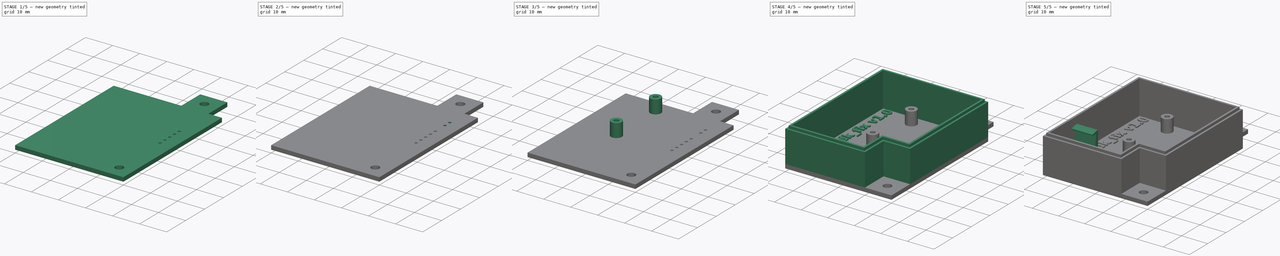
[diagram: build sequence overview — one tinted view per stage of 5, left to right]
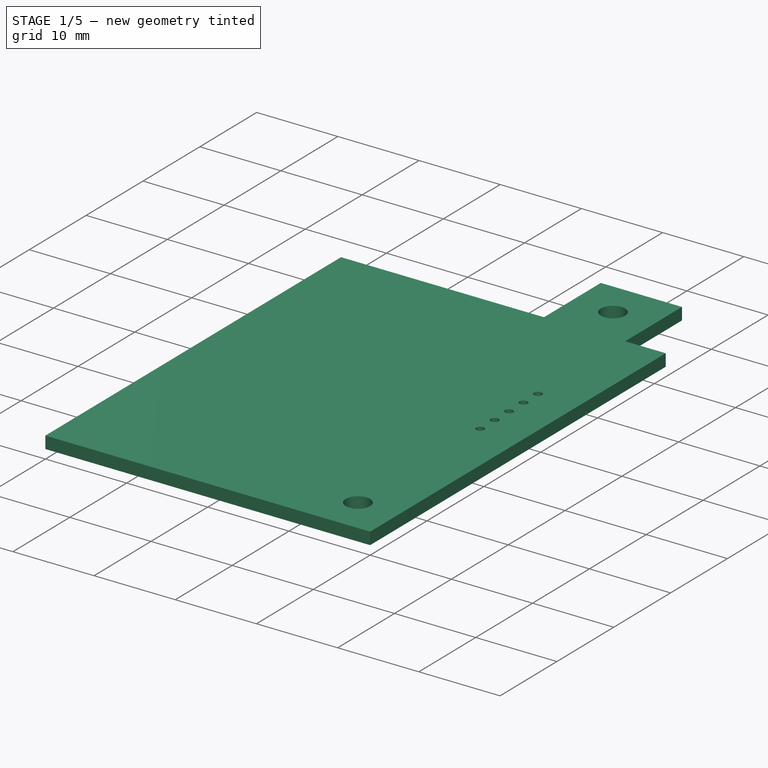
[diagram: stage 1 of 5 — iso view after this stage's code; geometry added in this stage tinted green]
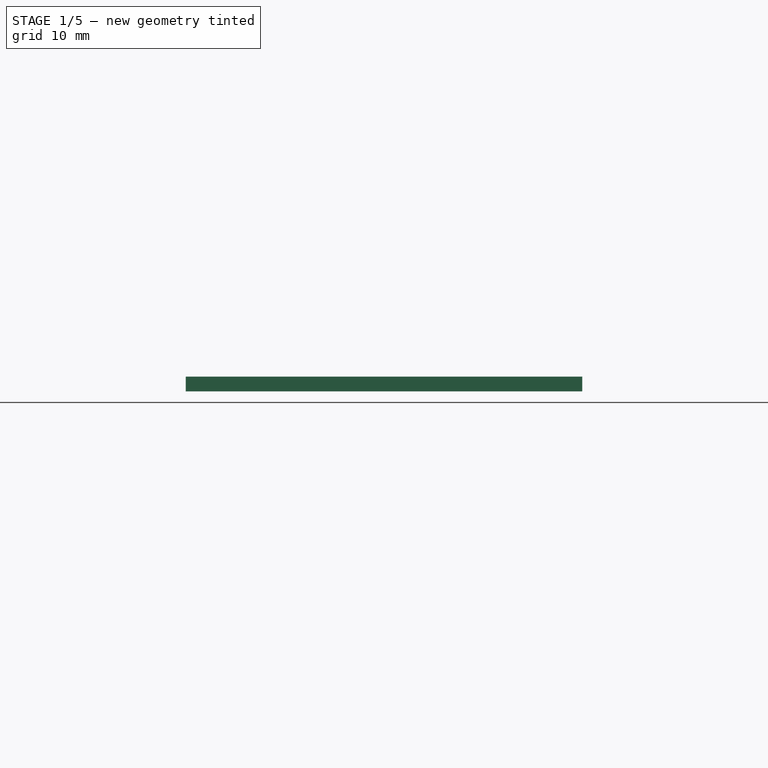
[diagram: stage 1 of 5 — front view after this stage's code; geometry added in this stage tinted green]
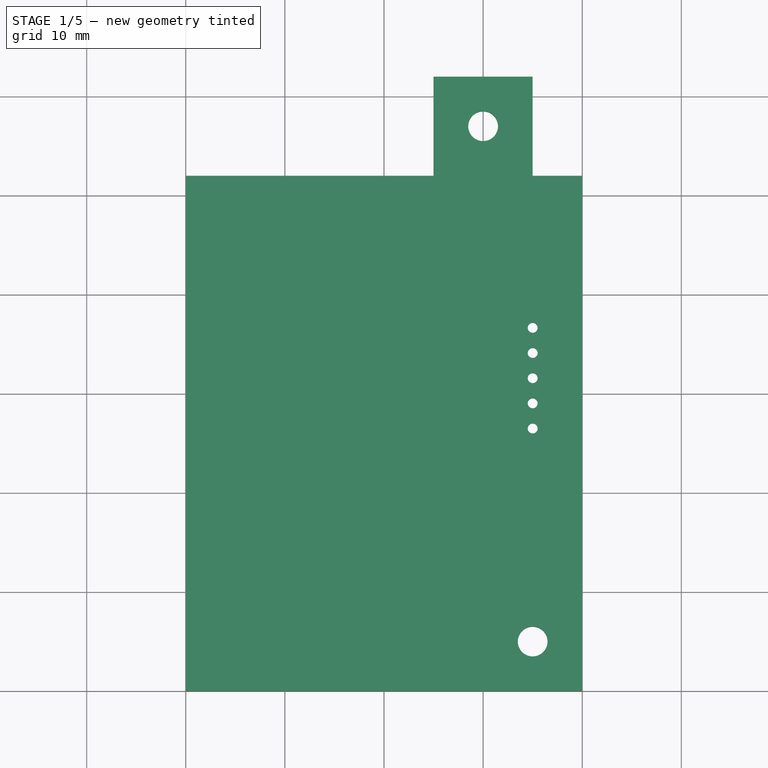
[diagram: stage 1 of 5 — top view after this stage's code; geometry added in this stage tinted green]
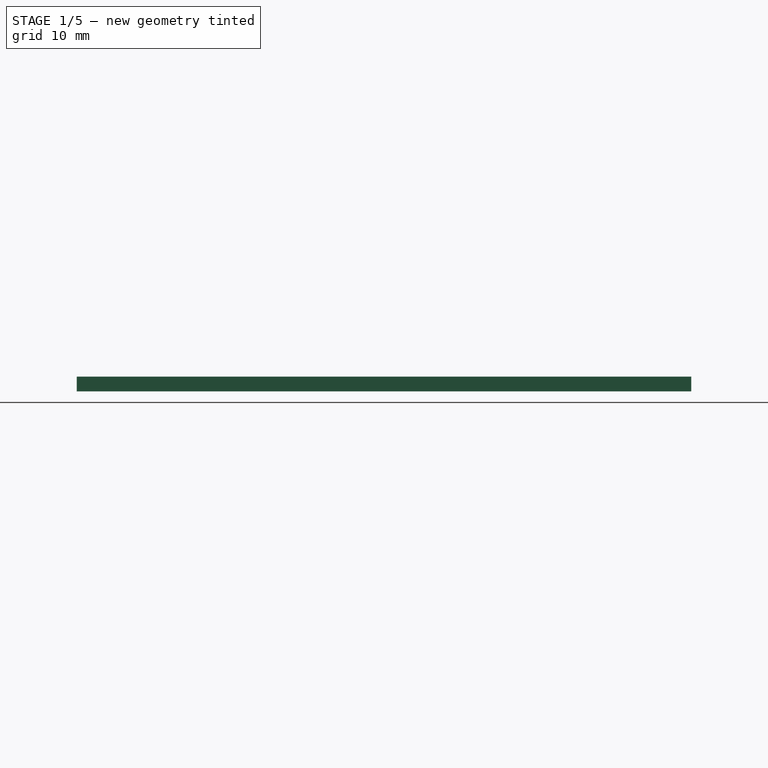
[diagram: stage 1 of 5 — right view after this stage's code; geometry added in this stage tinted green]
FCSTD DOCUMENT  (FreeCAD 0.19R24366 (Git))
Label: rad_dk_fixture
License: All rights reserved
LicenseURL: http://en.wikipedia.org/wiki/All_rights_reserved
objects: Sketcher::SketchObject×12, PartDesign::Pad×9, PartDesign::Body×5, PartDesign::Pocket×4, PartDesign::LinearPattern×2, PartDesign::Hole×2, PartDesign::FeatureBase×1, Part::Part2DObjectPython×1, App::Part×1
note: 51 computed .brp shape members not serialized (recipe doc carries the construction recipe); baked Part::Feature solids carry a one-line shape summary decoded from their .brp

FEATURE [PartDesign::Body] Body004
  BaseFeature = -> Body003
  Group = -> [Clone]
  Origin = -> Origin005
  Placement = pos=(30,52,0) rot=(0,0,1;3.14159rad)
  Tip = -> Clone
FEATURE [Sketcher::SketchObject] Sketch
  FullyConstrained = true
  MapMode = 5
  Support = -> [XY_Plane001]
  sketch-geometry (11):
    g0: Circle CenterX=30 CenterY=57 CenterZ=0 NormalX=0 NormalY=0 NormalZ=1 AngleXU=0 Radius=1.5
    g1: Circle CenterX=35 CenterY=5 CenterZ=0 NormalX=0 NormalY=0 NormalZ=1 AngleXU=0 Radius=1.5
    g2: LineSegment StartX=40 StartY=52 StartZ=0 EndX=40 EndY=0 EndZ=0
    g3: LineSegment StartX=40 StartY=0 StartZ=0 EndX=0 EndY=0 EndZ=0
    g4: LineSegment StartX=35 StartY=62 StartZ=0 EndX=35 EndY=52 EndZ=0
    g5: LineSegment StartX=35 StartY=52 StartZ=0 EndX=40 EndY=52 EndZ=0
    g6: LineSegment StartX=0 StartY=52 StartZ=0 EndX=0 EndY=0 EndZ=0
    g7: LineSegment StartX=35 StartY=62 StartZ=0 EndX=25 EndY=62 EndZ=0
    g8: LineSegment StartX=25 StartY=62 StartZ=0 EndX=25 EndY=52 EndZ=0
    g9: LineSegment StartX=25 StartY=52 StartZ=0 EndX=0 EndY=52 EndZ=0
    g10: LineSegment StartX=25 StartY=52 StartZ=0 EndX=35 EndY=52 EndZ=0
  constraints (32):
    c: Diameter(g0) = 3
    c: Diameter(g1) = 3
    c: DistanceX(g0,g1) = 5
    c: DistanceY(g1,g0) = 52
    c: Coincident(g2,g3)
    c: Horizontal(g3)
    c: Vertical(g2)
    c: Distance(g1,g3) = 5
    c: Distance(g1,g2) = 5
    c: Vertical(g4)
    c: Coincident(g5,g4)
    c: Coincident(g5,g2)
    c: Horizontal(g5)
    c: DistanceY(g4,g4) = 10
    c: Distance(g0,g4) = 5
    c: PointOnObject(g3,g-1)
    c: Vertical(g6)
    c: Coincident(g6,g3)
    c: DistanceX(g3,g3) = 40
    c: PointOnObject(g6,g-2)
    c: Coincident(g7,g4)
    c: Horizontal(g7)
    c: Coincident(g8,g7)
    c: Vertical(g8)
    c: Coincident(g9,g8)
    c: Coincident(g9,g6)
    c: Horizontal(g9)
    c: Distance(g0,g8) = 5
    c: Coincident(g10,g8)
    c: Coincident(g10,g4)
    c: Horizontal(g10)
    c: Distance(g0,g10) = 5
FEATURE [PartDesign::Pad] Pad
  Direction = (1,1,1)
  Length = 1.5
  Length2 = 100
  Profile = -> Sketch
  Type = 0
FEATURE [Sketcher::SketchObject] Sketch001
  ExternalGeometry = -> [Pad]
  FullyConstrained = true
  MapMode = 5
  Support = -> [XY_Plane001]
  sketch-geometry (2):
    g0: Circle CenterX=35 CenterY=26.5 CenterZ=0 NormalX=0 NormalY=0 NormalZ=1 AngleXU=0 Radius=0.5
    g1: LineSegment StartX=35 StartY=5 StartZ=0 EndX=35 EndY=26.5 EndZ=0
  constraints (5):
    c: Diameter(g0) = 1
    c: Coincident(g1,g-5)
    c: Coincident(g1,g0)
    c: Vertical(g1)
    c: DistanceY(g1,g0) = 21.5
FEATURE [PartDesign::Pocket] Pocket
  BaseFeature = -> Pad
  Length = 5
  Length2 = 100
  Profile = -> Sketch001
  Reversed = true
  Type = 1
FEATURE [PartDesign::LinearPattern] LinearPattern
  BaseFeature = -> Pocket
  Direction = -> Sketch001 [V_Axis]
  Length = 10.16
  Occurrences = 5
  Originals = -> [Pocket]
FEATURE [Sketcher::SketchObject] Sketch002
  ExternalGeometry = -> [LinearPattern]
  FullyConstrained = true
  MapMode = 5
  Support = -> [XY_Plane001]
  sketch-geometry (4):
    g0: LineSegment StartX=36.25 StartY=37.91 StartZ=0 EndX=33.75 EndY=37.91 EndZ=0
    g1: LineSegment StartX=33.75 StartY=37.91 StartZ=0 EndX=33.75 EndY=25.25 EndZ=0
    g2: LineSegment StartX=33.75 StartY=25.25 StartZ=0 EndX=36.25 EndY=25.25 EndZ=0
    g3: LineSegment StartX=36.25 StartY=25.25 StartZ=0 EndX=36.25 EndY=37.91 EndZ=0
  constraints (12):
    c: Horizontal(g0)
    c: Horizontal(g2)
    c: Vertical(g1)
    c: Vertical(g3)
    c: Coincident(g0,g3)
    c: Coincident(g0,g1)
    c: Coincident(g2,g1)
    c: Coincident(g2,g3)
    c: Distance(g-7,g2) = 1.25
    c: Distance(g-7,g1) = 1.25
    c: Distance(g-7,g3) = 1.25
    c: Distance(g-5,g0) = 1.25
FEATURE [PartDesign::Pocket] Pocket001
  BaseFeature = -> LinearPattern
  Length = 0.5
  Length2 = 100
  Profile = -> Sketch002
  Reversed = true
  Type = 0
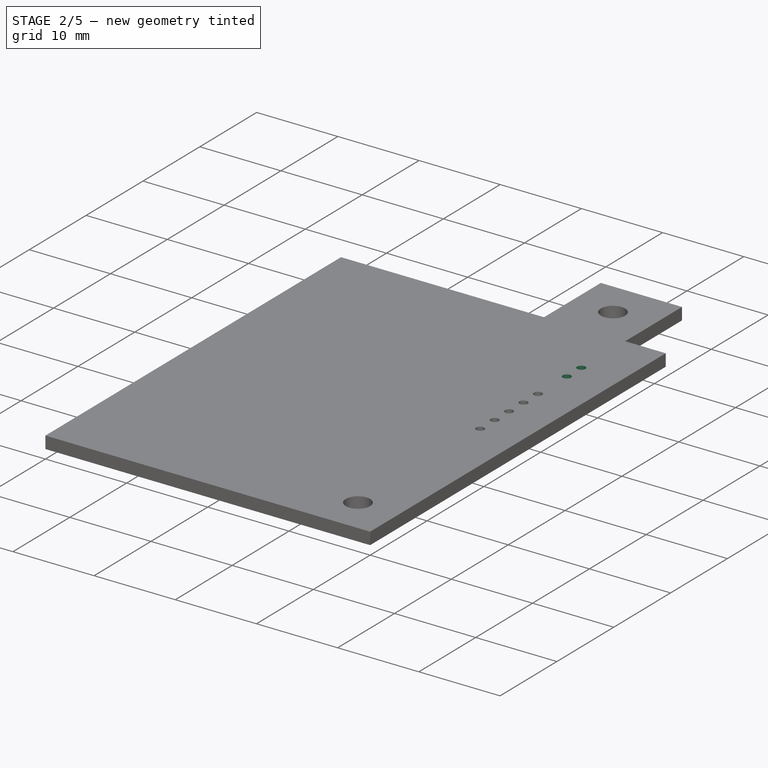
[diagram: stage 2 of 5 — iso view after this stage's code; geometry added in this stage tinted green]
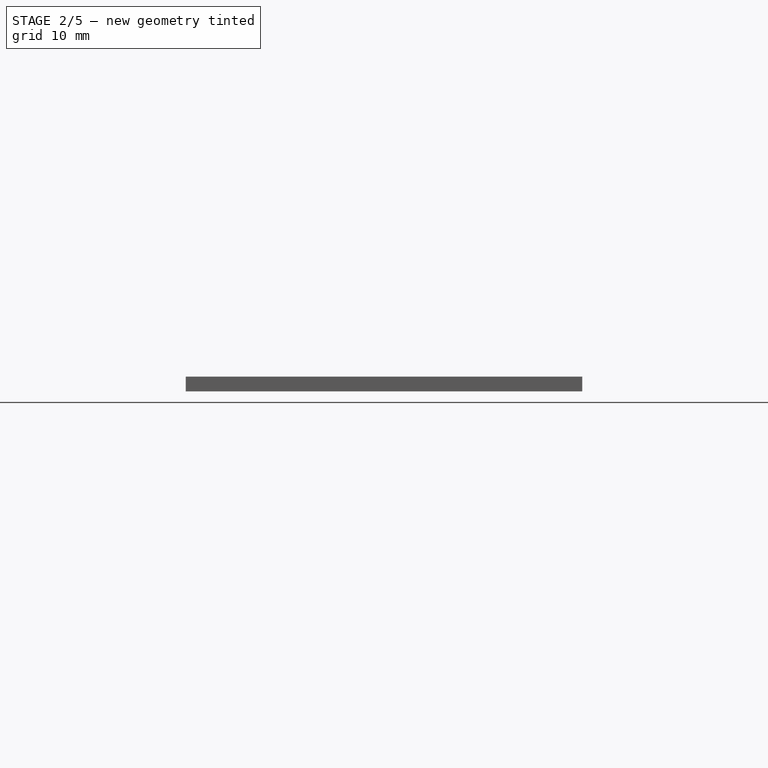
[diagram: stage 2 of 5 — front view after this stage's code; geometry added in this stage tinted green]
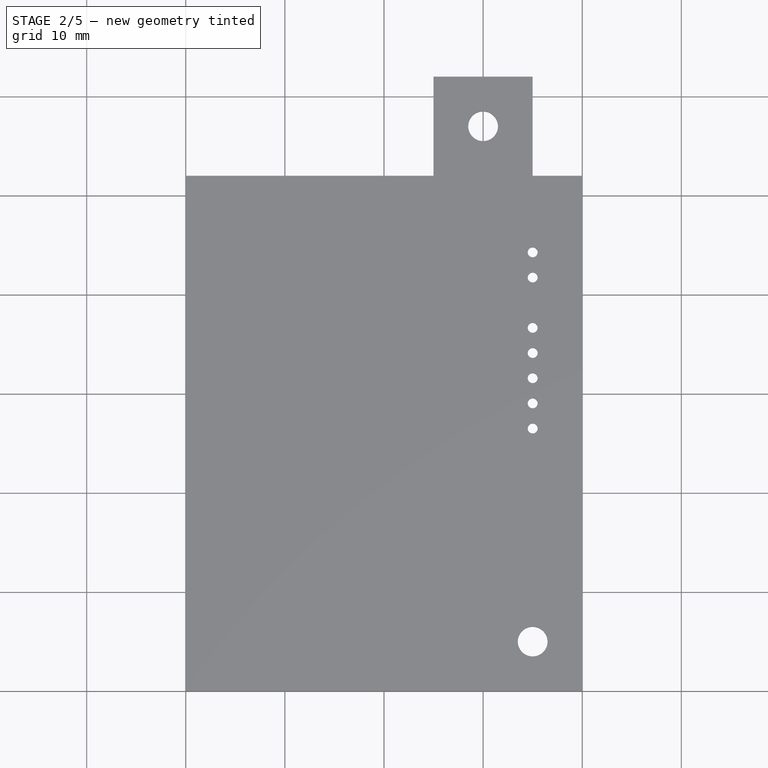
[diagram: stage 2 of 5 — top view after this stage's code; geometry added in this stage tinted green]
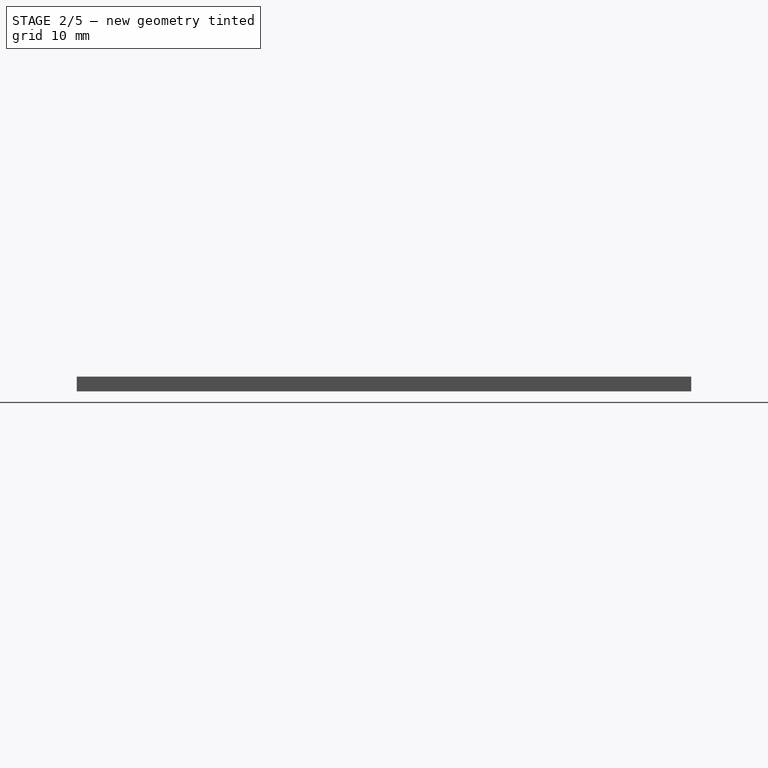
[diagram: stage 2 of 5 — right view after this stage's code; geometry added in this stage tinted green]
FEATURE [Sketcher::SketchObject] Sketch003
  ExternalGeometry = -> [Pocket001]
  FullyConstrained = true
  MapMode = 5
  Placement = pos=(0,0,1.5) rot=(0,0,1;0rad)
  Support = -> [Pocket001]
  sketch-geometry (2):
    g0: Circle CenterX=35 CenterY=41.74 CenterZ=0 NormalX=0 NormalY=0 NormalZ=1 AngleXU=0 Radius=0.5
    g1: LineSegment StartX=35 StartY=41.74 StartZ=0 EndX=35 EndY=26.5 EndZ=0
  constraints (5):
    c: Diameter(g0) = 1
    c: Coincident(g1,g0)
    c: Coincident(g1,g-4)
    c: Vertical(g1)
    c: DistanceY(g1,g0) = 15.24
FEATURE [PartDesign::Pocket] Pocket002
  BaseFeature = -> Pocket001
  Length = 5
  Length2 = 100
  Profile = -> Sketch003
  Type = 1
FEATURE [PartDesign::LinearPattern] LinearPattern001
  BaseFeature = -> Pocket002
  Direction = -> Sketch003 [V_Axis]
  Length = 2.54
  Occurrences = 2
  Originals = -> [Pocket002]
FEATURE [Sketcher::SketchObject] Sketch004
  ExternalGeometry = -> [LinearPattern001]
  FullyConstrained = true
  MapMode = 5
  Placement = pos=(0,0,0) rot=(1,0,0;3.14159rad)
  Support = -> [LinearPattern001]
  sketch-geometry (4):
    g0: LineSegment StartX=33.75 StartY=-45.53 StartZ=0 EndX=36.25 EndY=-45.53 EndZ=0
    g1: LineSegment StartX=36.25 StartY=-45.53 StartZ=0 EndX=36.25 EndY=-40.49 EndZ=0
    g2: LineSegment StartX=36.25 StartY=-40.49 StartZ=0 EndX=33.75 EndY=-40.49 EndZ=0
    g3: LineSegment StartX=33.75 StartY=-40.49 StartZ=0 EndX=33.75 EndY=-45.53 EndZ=0
  constraints (12):
    c: Coincident(g1,g2)
    c: Coincident(g2,g3)
    c: Coincident(g3,g0)
    c: Horizontal(g0)
    c: Horizontal(g2)
    c: Vertical(g1)
    c: Vertical(g3)
    c: Coincident(g0,g1)
    c: Distance(g-7,g0) = 1.25
    c: Distance(g-7,g3) = 1.25
    c: Distance(g-7,g1) = 1.25
    c: Distance(g-8,g2) = 1.25
FEATURE [PartDesign::Pocket] Pocket003
  BaseFeature = -> LinearPattern001
  Length = 0.5
  Length2 = 100
  Profile = -> Sketch004
  Type = 0
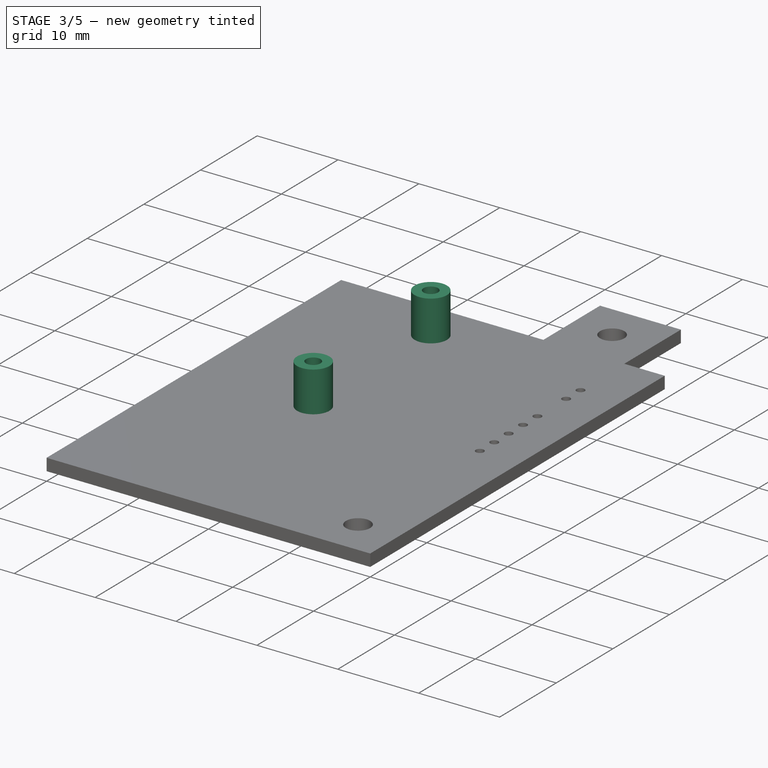
[diagram: stage 3 of 5 — iso view after this stage's code; geometry added in this stage tinted green]
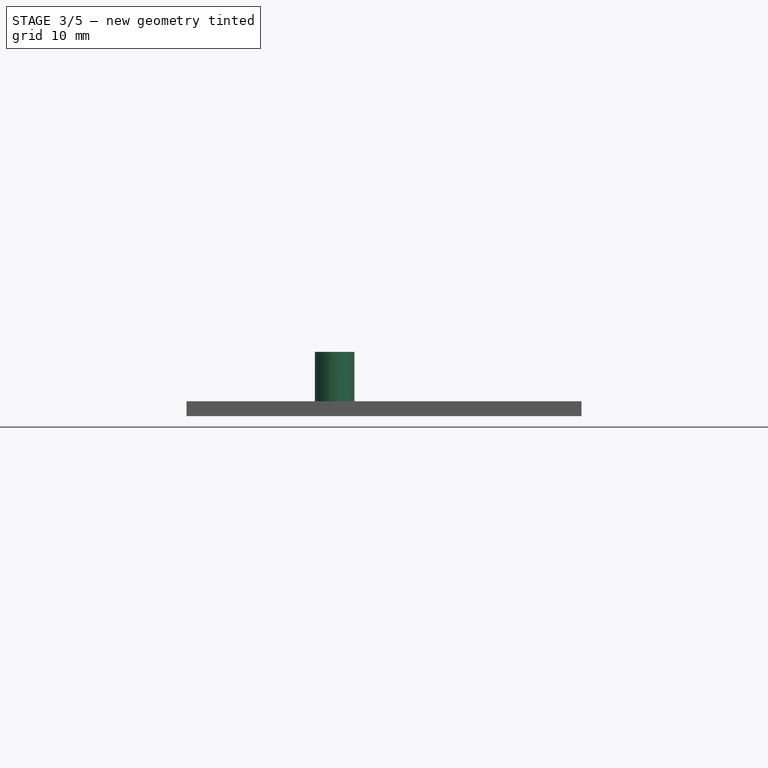
[diagram: stage 3 of 5 — front view after this stage's code; geometry added in this stage tinted green]
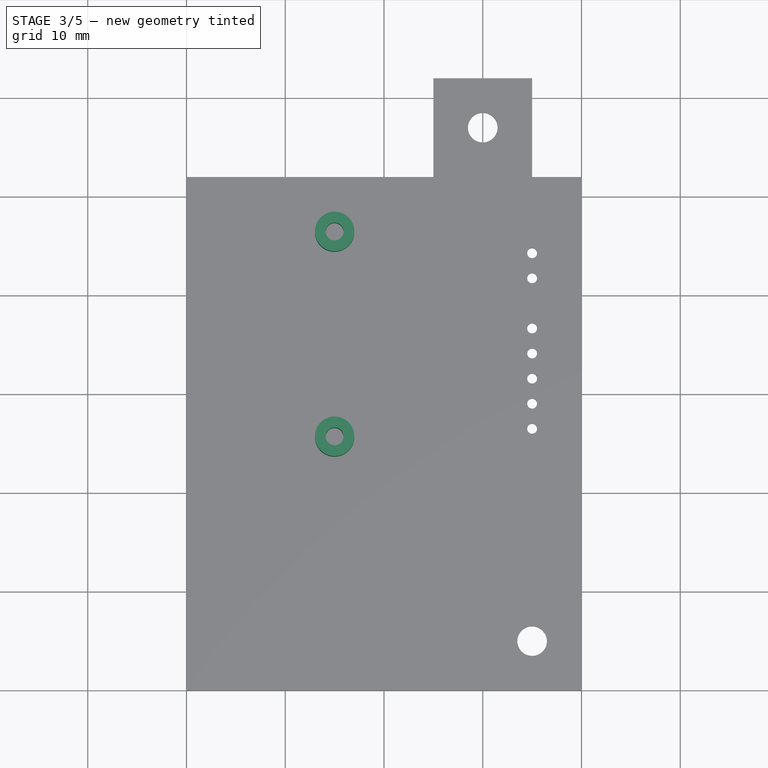
[diagram: stage 3 of 5 — top view after this stage's code; geometry added in this stage tinted green]
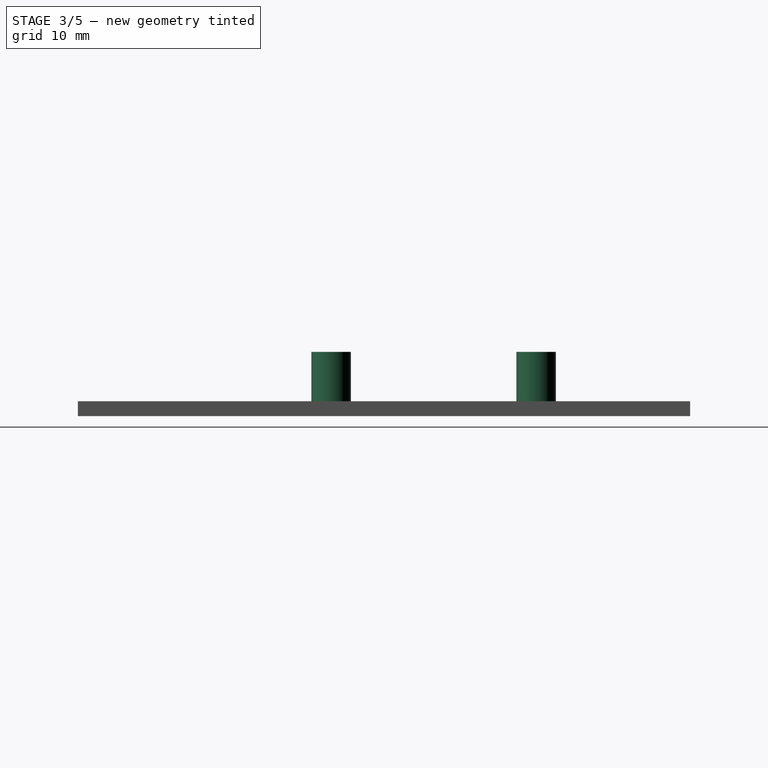
[diagram: stage 3 of 5 — right view after this stage's code; geometry added in this stage tinted green]
FEATURE [Sketcher::SketchObject] Sketch005
  ExternalGeometry = -> [Pocket003]
  FullyConstrained = true
  MapMode = 5
  Placement = pos=(0,0,1.5) rot=(0,0,1;0rad)
  Support = -> [Pocket003]
  sketch-geometry (4):
    g0: Circle CenterX=15 CenterY=46.4 CenterZ=0 NormalX=0 NormalY=0 NormalZ=1 AngleXU=0 Radius=2
    g1: Circle CenterX=15 CenterY=37 CenterZ=0 NormalX=0 NormalY=0 NormalZ=1 AngleXU=0 Radius=12.5
    g2: LineSegment StartX=15 StartY=46.4 StartZ=0 EndX=15 EndY=49.5 EndZ=0
    g3: LineSegment StartX=15 StartY=37 StartZ=0 EndX=2.5 EndY=37 EndZ=0
  constraints (12):
    c: Diameter(g0) = 4
    c: Diameter(g1) = 25
    c: DistanceX(g1,g0) = 0
    c: Coincident(g2,g0)
    c: PointOnObject(g2,g1)
    c: Vertical(g2)
    c: DistanceY(g2,g2) = 3.1
    c: Distance(g2,g-8) = 2.5
    c: Coincident(g3,g1)
    c: PointOnObject(g3,g1)
    c: Horizontal(g3)
    c: Distance(g3,g-9) = 2.5
FEATURE [PartDesign::Pad] Pad008
  BaseFeature = -> Pocket003
  Direction = (1,1,1)
  Length = 5
  Length2 = 100
  Profile = -> Sketch005
  Type = 0
FEATURE [PartDesign::Hole] Hole
  BaseFeature = -> Pad008
  Depth = 5
  DepthType = 0
  Diameter = 1.8
  DrillForDepth = false
  DrillPoint = 0
  DrillPointAngle = 118
  HoleCutCountersinkAngle = 90
  HoleCutCustomValues = false
  HoleCutDepth = 0
  HoleCutDiameter = 6.1
  HoleCutType = 0
  ModelActualThread = false
  Profile = -> Pad008 [Face31]
  Tapered = false
  TaperedAngle = 90
  ThreadAngle = 0
  ThreadClass = 0
  ThreadCutOffInner = 0
  ThreadCutOffOuter = 0
  ThreadDirection = 0
  ThreadFit = 0
  ThreadPitch = 0
  ThreadSize = 0
  ThreadType = 0
  Threaded = false
FEATURE [Sketcher::SketchObject] Sketch012
  ExternalGeometry = -> [Hole]
  FullyConstrained = true
  MapMode = 5
  Placement = pos=(0,0,1.5) rot=(0,0,1;0rad)
  Support = -> [Hole]
  sketch-geometry (2):
    g0: Circle CenterX=15 CenterY=25.65 CenterZ=0 NormalX=0 NormalY=0 NormalZ=1 AngleXU=0 Radius=2
    g1: LineSegment StartX=15 StartY=46.4 StartZ=0 EndX=15 EndY=25.65 EndZ=0
  constraints (5):
    c: Diameter(g0) = 4
    c: Coincident(g1,g-3)
    c: Coincident(g1,g0)
    c: Vertical(g1)
    c: DistanceY(g1,g1) = 20.75
FEATURE [PartDesign::Pad] Pad009
  BaseFeature = -> Hole
  Direction = (1,1,1)
  Length = 5
  Length2 = 100
  Profile = -> Sketch012
  Type = 0
FEATURE [PartDesign::Hole] Hole001
  BaseFeature = -> Pad009
  Depth = 5
  DepthType = 0
  Diameter = 1.8
  DrillForDepth = false
  DrillPoint = 0
  DrillPointAngle = 118
  HoleCutCountersinkAngle = 90
  HoleCutCustomValues = false
  HoleCutDepth = 0
  HoleCutDiameter = 6.1
  HoleCutType = 0
  ModelActualThread = false
  Profile = -> Pad009 [Face32]
  Tapered = false
  TaperedAngle = 90
  ThreadAngle = 0
  ThreadClass = 0
  ThreadCutOffInner = 0
  ThreadCutOffOuter = 0
  ThreadDirection = 0
  ThreadFit = 0
  ThreadPitch = 0
  ThreadSize = 0
  ThreadType = 0
  Threaded = false
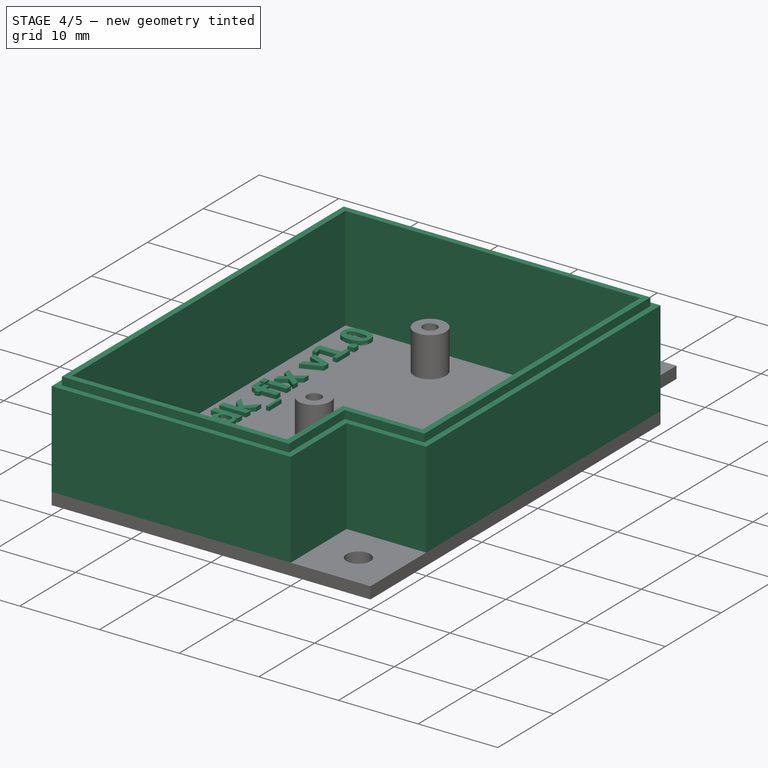
[diagram: stage 4 of 5 — iso view after this stage's code; geometry added in this stage tinted green]
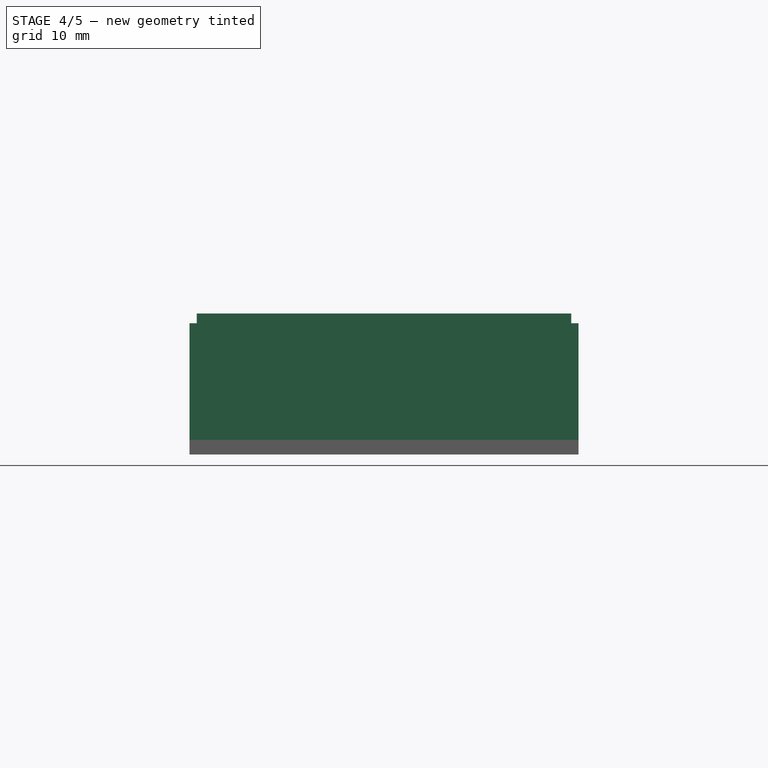
[diagram: stage 4 of 5 — front view after this stage's code; geometry added in this stage tinted green]
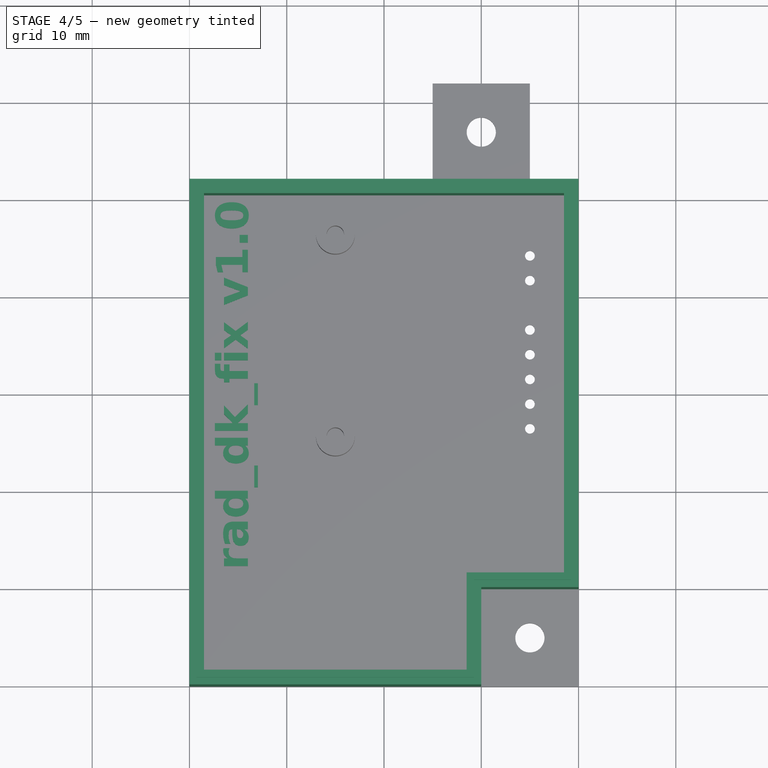
[diagram: stage 4 of 5 — top view after this stage's code; geometry added in this stage tinted green]
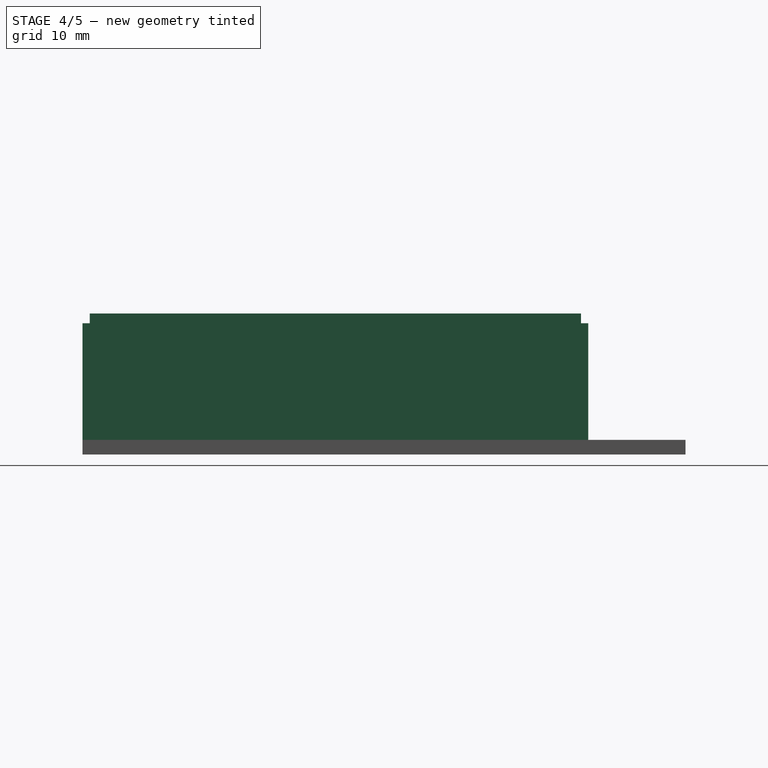
[diagram: stage 4 of 5 — right view after this stage's code; geometry added in this stage tinted green]
FEATURE [Sketcher::SketchObject] Sketch013
  ExternalGeometry = -> [Hole001]
  FullyConstrained = true
  MapMode = 5
  Placement = pos=(0,0,1.5) rot=(0,0,1;0rad)
  Support = -> [Hole001]
  sketch-geometry (12):
    g0: LineSegment StartX=0 StartY=52 StartZ=0 EndX=40 EndY=52 EndZ=0
    g1: LineSegment StartX=40 StartY=52 StartZ=0 EndX=40 EndY=10 EndZ=0
    g2: LineSegment StartX=40 StartY=10 StartZ=0 EndX=30 EndY=10 EndZ=0
    g3: LineSegment StartX=30 StartY=10 StartZ=0 EndX=30 EndY=0 EndZ=0
    g4: LineSegment StartX=30 StartY=0 StartZ=0 EndX=0 EndY=0 EndZ=0
    g5: LineSegment StartX=0 StartY=0 StartZ=0 EndX=0 EndY=52 EndZ=0
    g6: LineSegment StartX=1.5 StartY=50.5 StartZ=0 EndX=38.5 EndY=50.5 EndZ=0
    g7: LineSegment StartX=38.5 StartY=50.5 StartZ=0 EndX=38.5 EndY=11.5 EndZ=0
    g8: LineSegment StartX=38.5 StartY=11.5 StartZ=0 EndX=28.5 EndY=11.5 EndZ=0
    g9: LineSegment StartX=28.5 StartY=11.5 StartZ=0 EndX=28.5 EndY=1.5 EndZ=0
    g10: LineSegment StartX=28.5 StartY=1.5 StartZ=0 EndX=1.5 EndY=1.5 EndZ=0
    g11: LineSegment StartX=1.5 StartY=1.5 StartZ=0 EndX=1.5 EndY=50.5 EndZ=0
  constraints (33):
    c: Coincident(g1,g0)
    c: Vertical(g1)
    c: Coincident(g2,g1)
    c: Horizontal(g2)
    c: Coincident(g3,g2)
    c: Vertical(g3)
    c: Coincident(g4,g3)
    c: Horizontal(g4)
    c: Coincident(g5,g4)
    c: Coincident(g5,g0)
    c: Horizontal(g6)
    c: Coincident(g7,g6)
    c: Vertical(g7)
    c: Coincident(g8,g7)
    c: Horizontal(g8)
    c: Coincident(g9,g8)
    c: Vertical(g9)
    c: Coincident(g10,g9)
    c: Horizontal(g10)
    c: Coincident(g11,g10)
    c: Coincident(g11,g6)
    c: Vertical(g11)
    c: Distance(g6,g0) = 1.5
    c: Distance(g6,g5) = 1.5
    c: Distance(g6,g1) = 1.5
    c: Distance(g7,g2) = 1.5
    c: Distance(g8,g3) = 1.5
    c: Distance(g9,g4) = 1.5
    c: Coincident(g0,g-4)
    c: Coincident(g0,g-6)
    c: Coincident(g4,g-1)
    c: DistanceX(g2,g2) = 10
    c: DistanceY(g3,g3) = 10
FEATURE [PartDesign::Pad] Pad010
  BaseFeature = -> Hole001
  Direction = (1,1,1)
  Length = 12
  Length2 = 100
  Profile = -> Sketch013
  Type = 0
FEATURE [Sketcher::SketchObject] Sketch014
  ExternalGeometry = -> [Pad010]
  FullyConstrained = true
  MapMode = 5
  Placement = pos=(0,0,13.5) rot=(0,0,1;0rad)
  Support = -> [Pad010]
  sketch-geometry (12):
    g0: LineSegment StartX=0.75 StartY=51.25 StartZ=0 EndX=39.25 EndY=51.25 EndZ=0
    g1: LineSegment StartX=39.25 StartY=51.25 StartZ=0 EndX=39.25 EndY=10.75 EndZ=0
    g2: LineSegment StartX=39.25 StartY=10.75 StartZ=0 EndX=29.25 EndY=10.75 EndZ=0
    g3: LineSegment StartX=29.25 StartY=10.75 StartZ=0 EndX=29.25 EndY=0.75 EndZ=0
    g4: LineSegment StartX=29.25 StartY=0.75 StartZ=0 EndX=0.75 EndY=0.75 EndZ=0
    g5: LineSegment StartX=0.75 StartY=0.75 StartZ=0 EndX=0.75 EndY=51.25 EndZ=0
    g6: LineSegment StartX=1.5 StartY=50.5 StartZ=0 EndX=38.5 EndY=50.5 EndZ=0
    g7: LineSegment StartX=38.5 StartY=50.5 StartZ=0 EndX=38.5 EndY=11.5 EndZ=0
    g8: LineSegment StartX=38.5 StartY=11.5 StartZ=0 EndX=28.5 EndY=11.5 EndZ=0
    g9: LineSegment StartX=28.5 StartY=11.5 StartZ=0 EndX=28.5 EndY=1.5 EndZ=0
    g10: LineSegment StartX=28.5 StartY=1.5 StartZ=0 EndX=1.5 EndY=1.5 EndZ=0
    g11: LineSegment StartX=1.5 StartY=1.5 StartZ=0 EndX=1.5 EndY=50.5 EndZ=0
  constraints (31):
    c: Horizontal(g0)
    c: Coincident(g1,g0)
    c: Vertical(g1)
    c: Coincident(g2,g1)
    c: Horizontal(g2)
    c: Coincident(g3,g2)
    c: Vertical(g3)
    c: Coincident(g4,g3)
    c: Horizontal(g4)
    c: Coincident(g5,g4)
    c: Coincident(g5,g0)
    c: Vertical(g5)
    c: Coincident(g7,g6)
    c: Coincident(g8,g7)
    c: Coincident(g9,g8)
    c: Coincident(g10,g9)
    c: Horizontal(g10)
    c: Coincident(g11,g10)
    c: Coincident(g11,g6)
    c: Vertical(g11)
    c: Distance(g0,g6) = 0.75
    c: Distance(g6,g5) = 0.75
    c: Coincident(g6,g-14)
    c: Distance(g0,g7) = 0.75
    c: Coincident(g6,g-10)
    c: Distance(g7,g2) = 0.75
    c: Coincident(g7,g-11)
    c: Distance(g8,g3) = 0.75
    c: Coincident(g8,g-12)
    c: Distance(g9,g4) = 0.75
    c: Coincident(g9,g-13)
FEATURE [PartDesign::Pad] Pad011
  BaseFeature = -> Pad010
  Direction = (1,1,1)
  Length = 1
  Length2 = 100
  Profile = -> Sketch014
  Type = 0
FEATURE [Part::Part2DObjectPython] ShapeString  # Draft 2D object (typed FeaturePython)
  AttachmentOffset = pos=(6,12,0) rot=(0,0,1;1.5708rad)
  FontFile = <path>
  MapMode = 5
  Placement = pos=(6,12,1.5) rot=(0,0,1;1.5708rad)
  Size = 3.5
  String = rad_dk_fix v1.0
  Support = -> [Pad011]
  Tracking = 0
FEATURE [PartDesign::Pad] Pad012
  BaseFeature = -> Pad011
  Direction = (1,1,1)
  Length = 0.5
  Length2 = 100
  Profile = -> ShapeString
  Type = 0
FEATURE [PartDesign::Body] Body
  Group = -> [Sketch,Pad,Sketch001,Pocket,LinearPattern,Sketch002,Pocket001,Sketch003,Pocket002,LinearPattern001,Sketch004,Pocket003,Sketch005,Pad008,Hole,Sketch012,Pad009,Hole001,Sketch013,Pad010,Sketch014,Pad011,ShapeString,Pad012]
  Origin = -> Origin001
  Tip = -> Pad012
FEATURE [App::Part] Part
  Group = -> [Body,Body001,Body002,Body003,Body004]
  Origin = -> Origin
note: 1 file-system path scrubbed to <path> (originals preserved in the JSON sidecar)
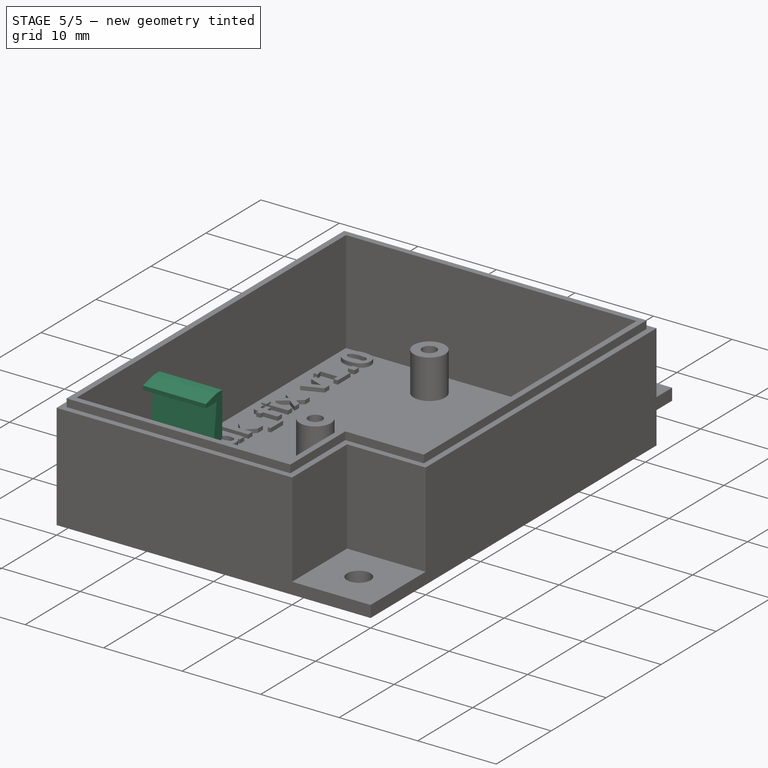
[diagram: stage 5 of 5 — iso view after this stage's code; geometry added in this stage tinted green]
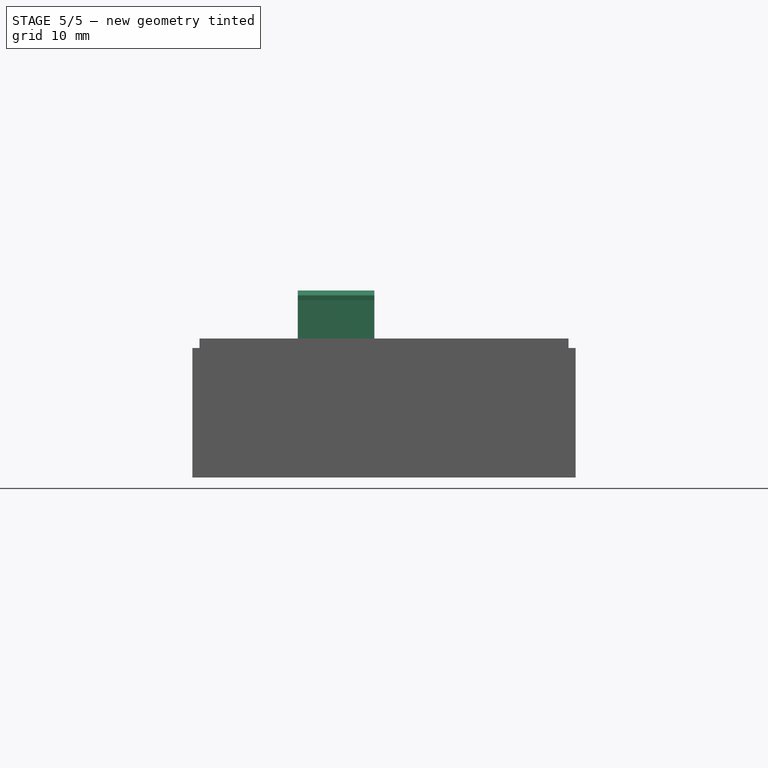
[diagram: stage 5 of 5 — front view after this stage's code; geometry added in this stage tinted green]
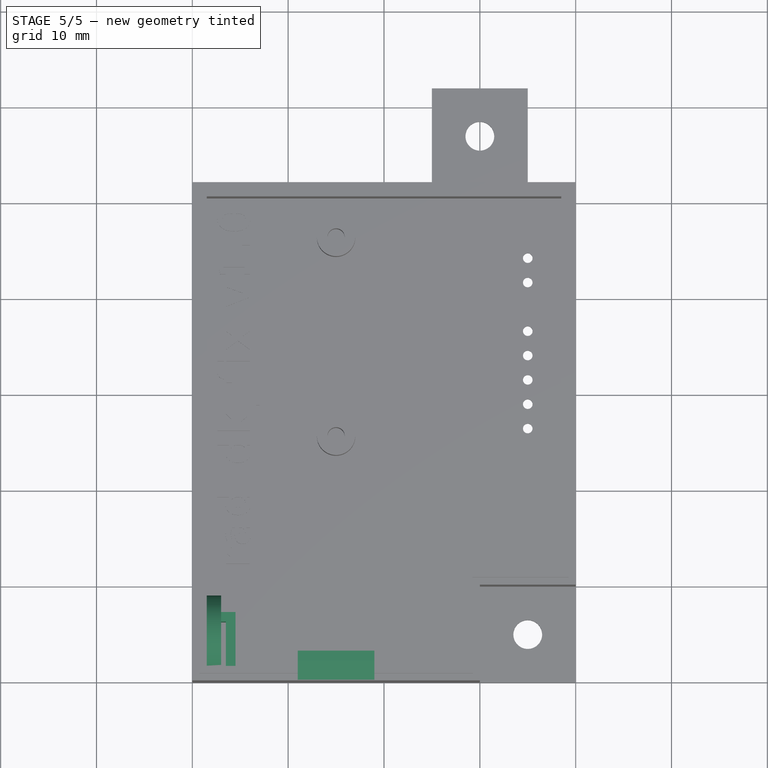
[diagram: stage 5 of 5 — top view after this stage's code; geometry added in this stage tinted green]
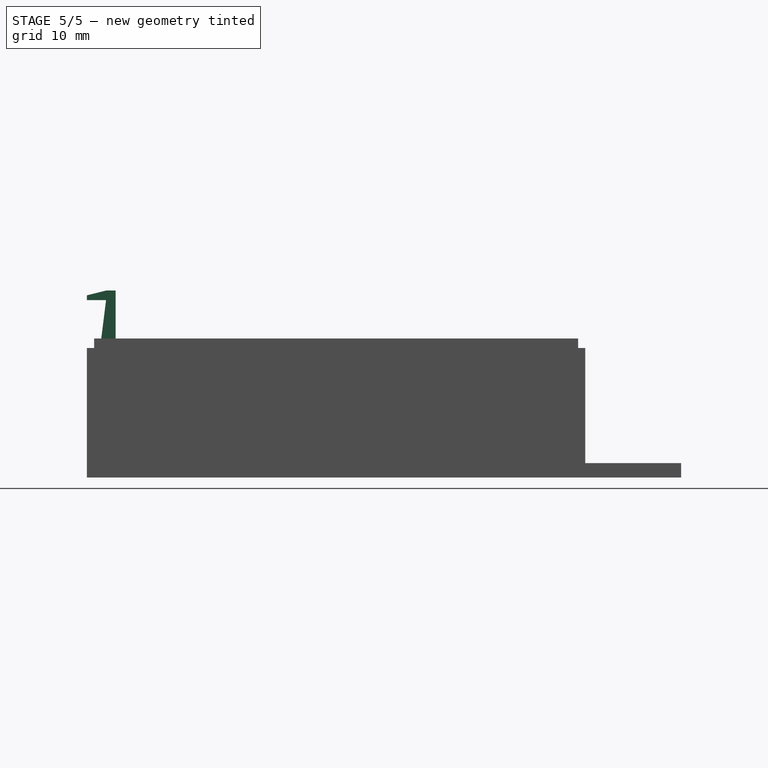
[diagram: stage 5 of 5 — right view after this stage's code; geometry added in this stage tinted green]
FEATURE [Sketcher::SketchObject] Sketch007
  FullyConstrained = true
  MapMode = 5
  Placement = pos=(0,0,0) rot=(0.57735,0.57735,0.57735;2.0944rad)
  Support = -> [YZ_Plane002]
  sketch-geometry (5):
    g0: LineSegment StartX=0 StartY=0 StartZ=0 EndX=0 EndY=6 EndZ=0
    g1: LineSegment StartX=9 StartY=0 StartZ=0 EndX=9 EndY=6 EndZ=0
    g2: LineSegment StartX=0 StartY=0 StartZ=0 EndX=9 EndY=0 EndZ=0
    g3: ArcOfCircle CenterX=4.5 CenterY=6 CenterZ=0 NormalX=0 NormalY=0 NormalZ=1 AngleXU=0 Radius=4.5 StartAngle=0 EndAngle=3.14159
    g4: Circle CenterX=4.5 CenterY=6 CenterZ=0 NormalX=0 NormalY=0 NormalZ=1 AngleXU=0 Radius=3.25
  constraints (14):
    c: Vertical(g0)
    c: Vertical(g1)
    c: Coincident(g2,g0)
    c: Horizontal(g2)
    c: Coincident(g2,g1)
    c: Coincident(g3,g0)
    c: Coincident(g3,g1)
    c: Tangent(g3,g0,g0) = 1.5708
    c: Tangent(g3,g1,g1) = -1.5708
    c: DistanceX(g2,g2) = 9
    c: Distance(g3,g2) = 6
    c: Radius(g4) = 3.25
    c: Coincident(g4,g3)
    c: Coincident(g-1,g0)
FEATURE [PartDesign::Pad] Pad003
  Direction = (1,1,1)
  Length = 3
  Length2 = 100
  Placement = pos=(0,0,0) rot=(0.57735,0.57735,0.57735;2.0944rad)
  Profile = -> Sketch007
  Type = 0
FEATURE [PartDesign::Body] Body001
  Group = -> [Sketch007,Pad003]
  Origin = -> Origin002
  Placement = pos=(22,20,1.5) rot=(0,0,1;3.66519rad)
  Tip = -> Pad003
FEATURE [Sketcher::SketchObject] Sketch008
  FullyConstrained = true
  MapMode = 5
  Support = -> [XY_Plane003]
  sketch-geometry (12):
    g0: LineSegment StartX=3.5 StartY=6.25 StartZ=0 EndX=3.5 EndY=1.25 EndZ=0
    g1: LineSegment StartX=3.5 StartY=6.25 StartZ=0 EndX=0.5 EndY=6.25 EndZ=0
    g2: LineSegment StartX=3.5 StartY=1.25 StartZ=0 EndX=0.5 EndY=1.25 EndZ=0
    g3: LineSegment StartX=0.5 StartY=6.25 StartZ=0 EndX=0.5 EndY=5.75 EndZ=0
    g4: LineSegment StartX=0.5 StartY=5.75 StartZ=0 EndX=-3e-16 EndY=5.75 EndZ=0
    g5: LineSegment StartX=-3e-16 StartY=5.75 StartZ=0 EndX=-3e-16 EndY=7.25 EndZ=0
    g6: LineSegment StartX=-3e-16 StartY=7.25 StartZ=0 EndX=4.5 EndY=7.25 EndZ=0
    g7: LineSegment StartX=4.5 StartY=7.25 StartZ=0 EndX=4.5 EndY=0 EndZ=0
    g8: LineSegment StartX=4.5 StartY=0 StartZ=0 EndX=0 EndY=0 EndZ=0
    g9: LineSegment StartX=0 StartY=0 StartZ=0 EndX=0 EndY=1.5 EndZ=0
    g10: LineSegment StartX=0 StartY=1.5 StartZ=0 EndX=0.5 EndY=1.5 EndZ=0
    g11: LineSegment StartX=0.5 StartY=1.5 StartZ=0 EndX=0.5 EndY=1.25 EndZ=0
  constraints (35):
    c: Vertical(g0)
    c: DistanceY(g0,g0) = 5
    c: Coincident(g1,g0)
    c: Horizontal(g1)
    c: DistanceX(g1,g1) = 3
    c: Coincident(g2,g0)
    c: Horizontal(g2)
    c: DistanceX(g2,g2) = 3
    c: Coincident(g3,g1)
    c: Vertical(g3)
    c: Coincident(g4,g3)
    c: Horizontal(g4)
    c: Coincident(g5,g4)
    c: Vertical(g5)
    c: DistanceY(g3,g3) = 0.5
    c: DistanceX(g4,g4) = 0.5
    c: DistanceY(g5,g5) = 1.5
    c: Coincident(g6,g5)
    c: Horizontal(g6)
    c: DistanceX(g6,g6) = 4.5
    c: Coincident(g7,g6)
    c: Vertical(g7)
    c: DistanceY(g7,g7) = 7.25
    c: Coincident(g8,g7)
    c: Horizontal(g8)
    c: Equal(g8,g6)
    c: Coincident(g9,g8)
    c: Vertical(g9)
    c: Equal(g9,g5)
    c: Coincident(g10,g9)
    c: Horizontal(g10)
    c: Equal(g10,g4)
    c: Coincident(g11,g10)
    c: Coincident(g11,g2)
    c: Coincident(g8,g-1)
FEATURE [PartDesign::Pad] Pad004
  Direction = (1,1,1)
  Length = 7
  Length2 = 100
  Profile = -> Sketch008
  Type = 0
FEATURE [PartDesign::Body] Body002
  Group = -> [Sketch008,Pad004]
  Origin = -> Origin003
  Placement = pos=(7,11,1.5) rot=(0,0,1;3.66519rad)
  Tip = -> Pad004
FEATURE [Sketcher::SketchObject] Sketch011
  FullyConstrained = true
  MapMode = 5
  Placement = pos=(0,0,0) rot=(0.57735,0.57735,0.57735;2.0944rad)
  Support = -> [YZ_Plane004]
  expr: Constraints[26] = 180 - 45
  sketch-geometry (10):
    g0: LineSegment StartX=1.5 StartY=2 StartZ=0 EndX=1.5 EndY=7 EndZ=0
    g1: LineSegment StartX=1.5 StartY=7 StartZ=0 EndX=0.5 EndY=7 EndZ=0
    g2: LineSegment StartX=0.5 StartY=7 StartZ=0 EndX=-1.5 EndY=6.5 EndZ=0
    g3: LineSegment StartX=-1.5 StartY=6.5 StartZ=0 EndX=-1.5 EndY=6 EndZ=0
    g4: LineSegment StartX=-1.5 StartY=6 StartZ=0 EndX=0.5 EndY=6 EndZ=0
    g5: LineSegment StartX=0.5 StartY=6 StartZ=0 EndX=-3.84e-14 EndY=2 EndZ=0
    g6: LineSegment StartX=-3.84e-14 StartY=2 StartZ=0 EndX=1.5 EndY=2 EndZ=0
    g7: LineSegment StartX=1.5 StartY=2 StartZ=0 EndX=1.5 EndY=1.5 EndZ=0
    g8: LineSegment StartX=1.5 StartY=1.5 StartZ=0 EndX=-3.84e-14 EndY=-5.402e-13 EndZ=0
    g9: LineSegment StartX=-3.84e-14 StartY=-5.402e-13 StartZ=0 EndX=-3.84e-14 EndY=2 EndZ=0
  constraints (28):
    c: Vertical(g0)
    c: DistanceY(g0,g0) = 5
    c: Coincident(g1,g0)
    c: Horizontal(g1)
    c: DistanceX(g1,g1) = 1
    c: Coincident(g2,g1)
    c: Coincident(g3,g2)
    c: Vertical(g3)
    c: Coincident(g4,g3)
    c: Horizontal(g4)
    c: Coincident(g5,g4)
    c: DistanceY(g3,g3) = 0.5
    c: DistanceY(g3,g1) = 1
    c: DistanceX(g4,g0) = 1
    c: DistanceX(g5,g0) = 1.5
    c: Distance(g3,g0) = 3
    c: Coincident(g6,g5)
    c: Coincident(g6,g0)
    c: Horizontal(g6)
    c: Coincident(g7,g0)
    c: Vertical(g7)
    c: Coincident(g8,g7)
    c: Coincident(g9,g8)
    c: Coincident(g9,g5)
    c: Vertical(g9)
    c: DistanceY(g7,g7) = 0.5
    c: Angle(g9,g8,g8) = 2.35619
    c: Coincident(g8,g-1)
FEATURE [PartDesign::Pad] Pad007
  Direction = (1,1,1)
  Length = 8
  Length2 = 100
  Placement = pos=(0,0,0) rot=(0.57735,0.57735,0.57735;2.0944rad)
  Profile = -> Sketch011
  Type = 0
FEATURE [PartDesign::Body] Body003
  Group = -> [Sketch011,Pad007]
  Origin = -> Origin004
  Placement = pos=(11,1.5,12.5) rot=(0,0,1;0rad)
  Tip = -> Pad007
FEATURE [PartDesign::FeatureBase] Clone
  BaseFeature = -> Body003
  Placement = pos=(11,1.5,12.5) rot=(0,0,1;0rad)
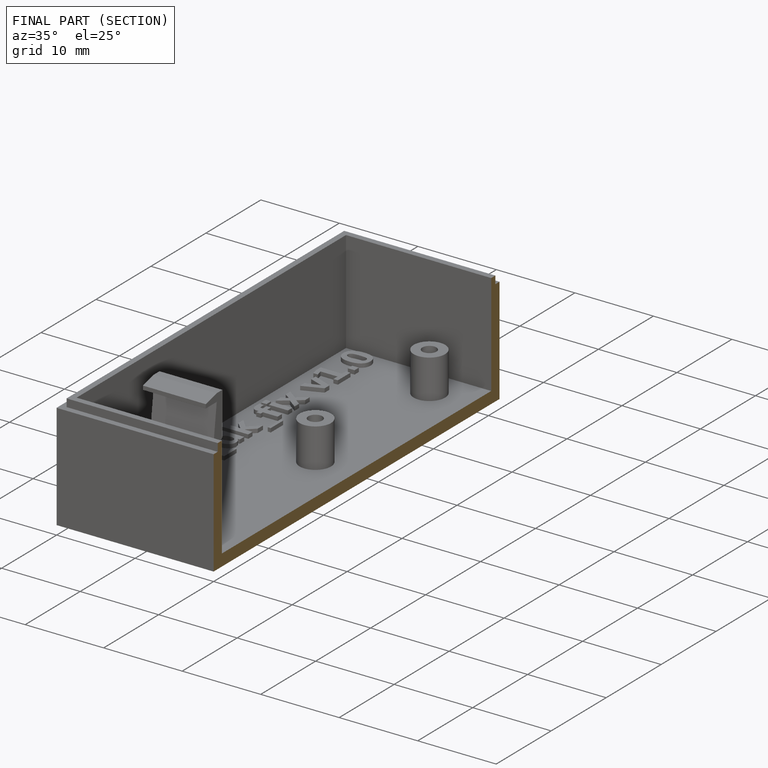
[diagram: finished part — half-section view (interior)]
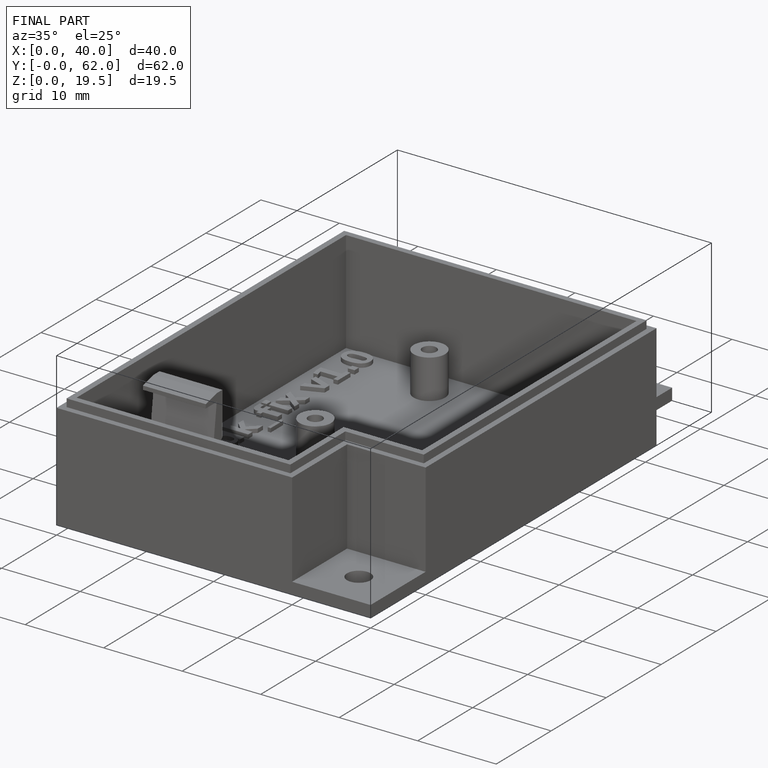
[diagram: finished part — iso view with bounding-box wireframe]
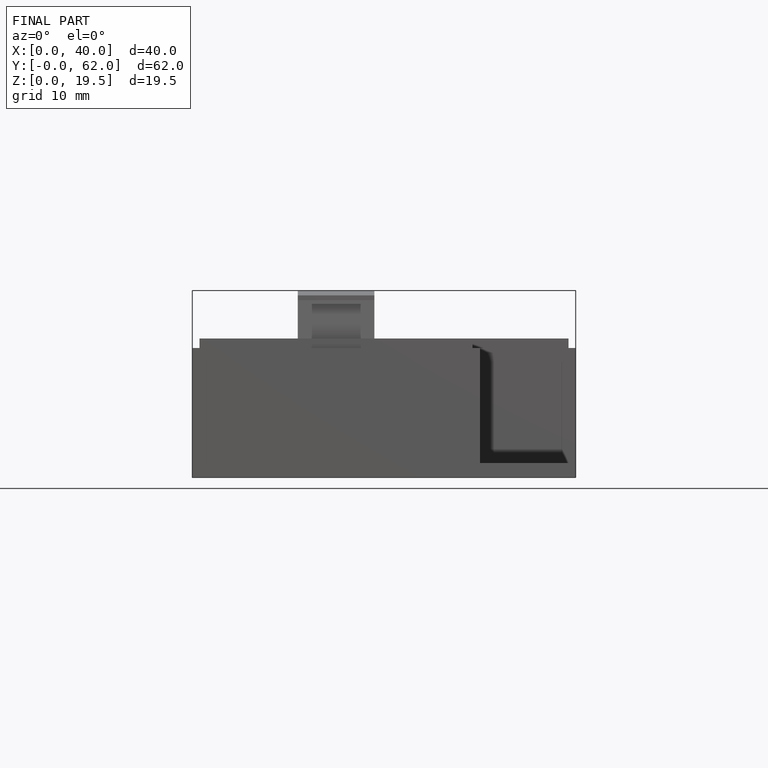
[diagram: finished part — front view with bounding-box wireframe]
